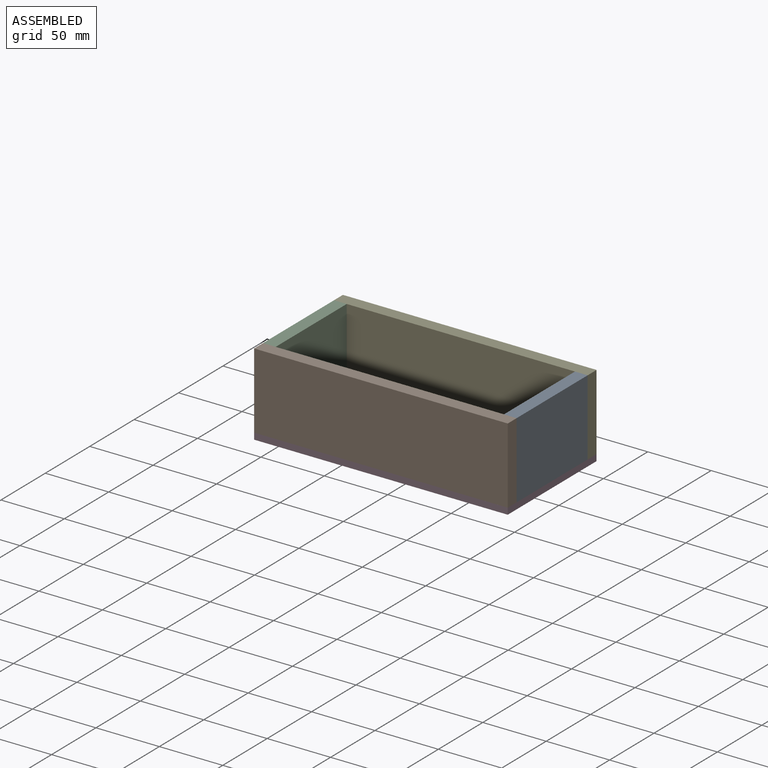
[diagram: assembled view]
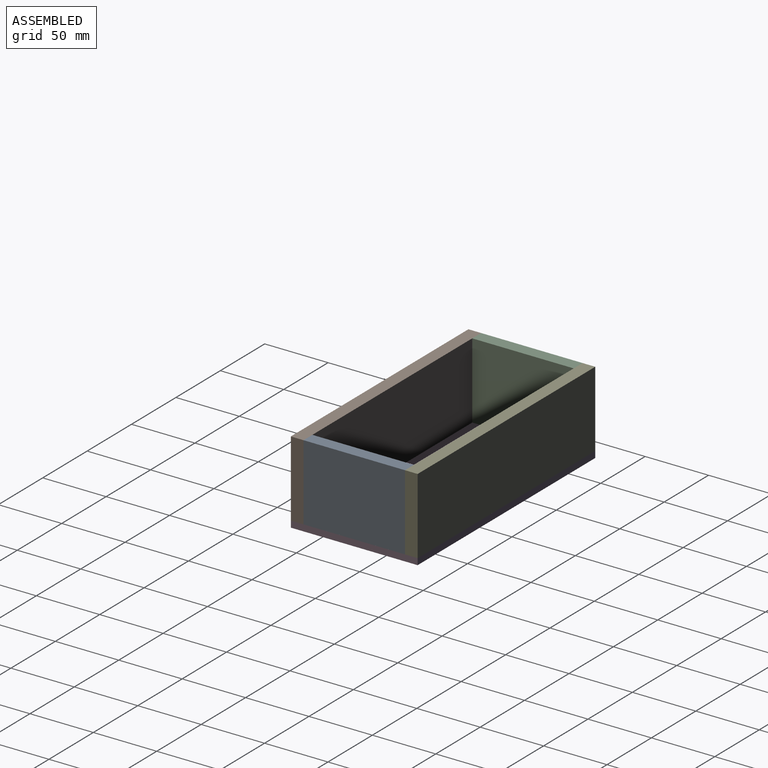
[diagram: assembled view, second angle]
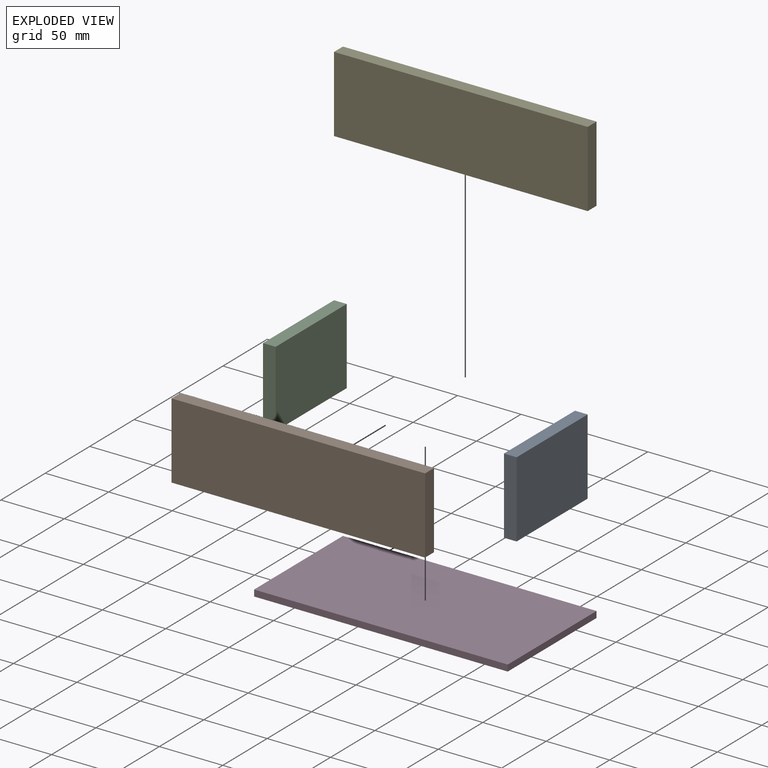
[diagram: exploded view]
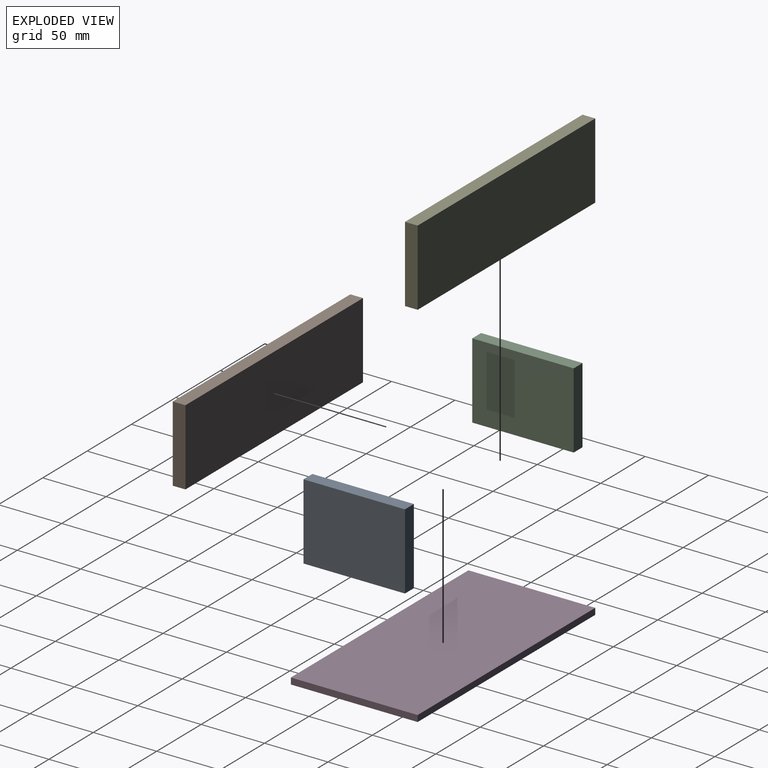
[diagram: exploded view, second angle]
ASSEMBLY  parts=5 mates=4
PART A: 6 faces, bbox 10x80x60 mm
  f0: plane 80x10mm, normal (0,0,1), area 800mm2, adj f1,f3,f4,f5
  f1: plane 60x10mm, normal (0,-1,0), area 600mm2, adj f0,f2,f4,f5
  f2: plane 80x10mm, normal (0,0,-1), area 800mm2, adj f1,f3,f4,f5
  f3: plane 60x10mm, normal (0,1,0), area 600mm2, adj f0,f2,f4,f5
  f4: plane 80x60mm, normal (1,0,0), area 4800mm2, adj f0,f1,f2,f3
  f5: plane 80x60mm, normal (-1,0,0), area 4800mm2, adj f0,f1,f2,f3
PART B: 6 faces, bbox 200x10x60 mm
  f0: plane 200x10mm, normal (0,0,1), area 2000mm2, adj f1,f3,f4,f5
  f1: plane 60x10mm, normal (-1,0,0), area 600mm2, adj f0,f2,f4,f5
  f2: plane 200x10mm, normal (0,0,-1), area 2000mm2, adj f1,f3,f4,f5
  f3: plane 60x10mm, normal (1,0,0), area 600mm2, adj f0,f2,f4,f5
  f4: plane 200x60mm, normal (0,-1,0), area 12000mm2, adj f0,f1,f2,f3
  f5: plane 200x60mm, normal (0,1,0), area 12000mm2, adj f0,f1,f2,f3
PART C: same geometry as A
PART D: 6 faces, bbox 200x100x5 mm
  f0: plane 200x5mm, normal (0,1,0), area 1000mm2, adj f1,f3,f4,f5
  f1: plane 100x5mm, normal (-1,0,0), area 500mm2, adj f0,f2,f4,f5
  f2: plane 200x5mm, normal (0,-1,0), area 1000mm2, adj f1,f3,f4,f5
  f3: plane 100x5mm, normal (1,0,0), area 500mm2, adj f0,f2,f4,f5
  f4: plane 200x100mm, normal (0,0,-1), area 20000mm2, adj f0,f1,f2,f3
  f5: plane 200x100mm, normal (0,0,1), area 20000mm2, adj f0,f1,f2,f3
PART E: same geometry as B
PLACE A t=(162.95,223.77,105.73)mm
PLACE B t=(285.07,76.8,161.03)mm
PLACE C t=(-27.05,223.77,105.73)mm
PLACE D t=(26.9,84.1,14.52)mm
PLACE E t=(285.07,166.8,161.03)mm
MATE fastened A.f2 <-> B.f2  axis (0,0,-1) through (172.95,76.8,14.52)mm
MATE fastened C.f2 <-> E.f2  axis (0,0,-1) through (-27.05,156.8,14.52)mm
MATE fastened D.f5 <-> B.f2  axis (0,0,1) through (-27.05,66.8,14.52)mm
MATE fastened E.f2 <-> D.f5  axis (0,0,1) through (172.95,166.8,14.52)mm
